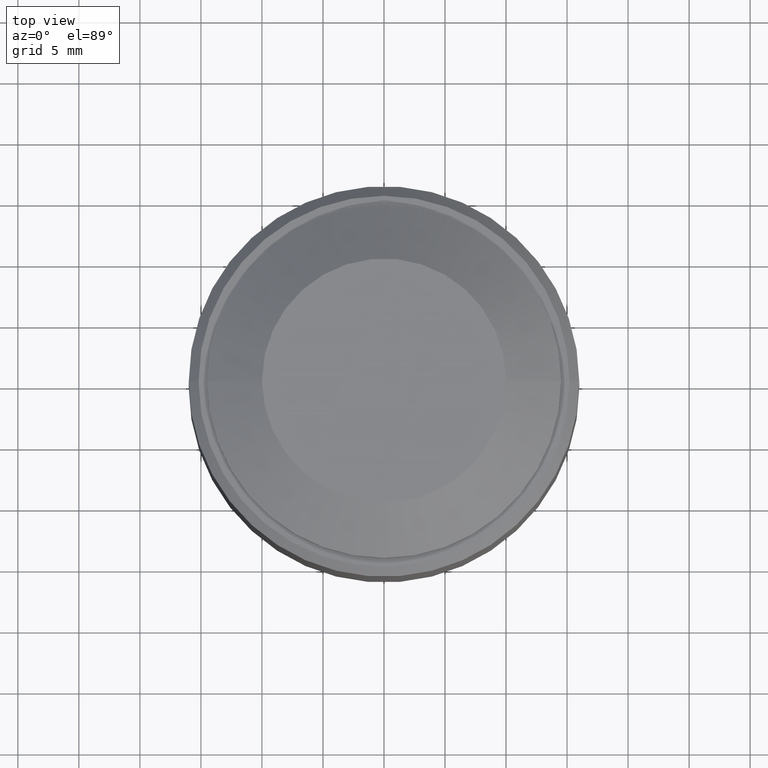
[diagram: clean part render]
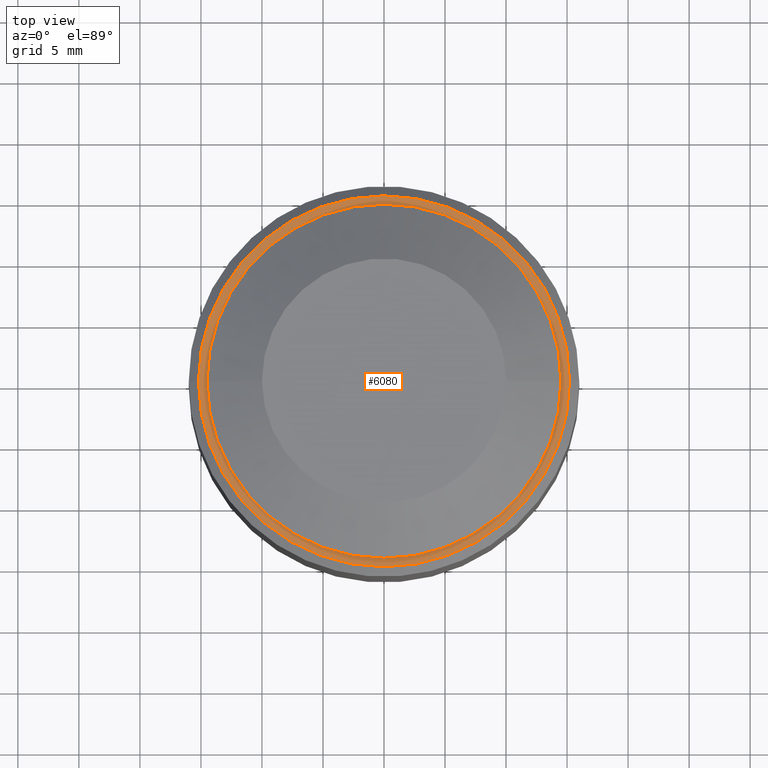
[diagram: same view with one face highlighted and labeled with its STEP entity id]
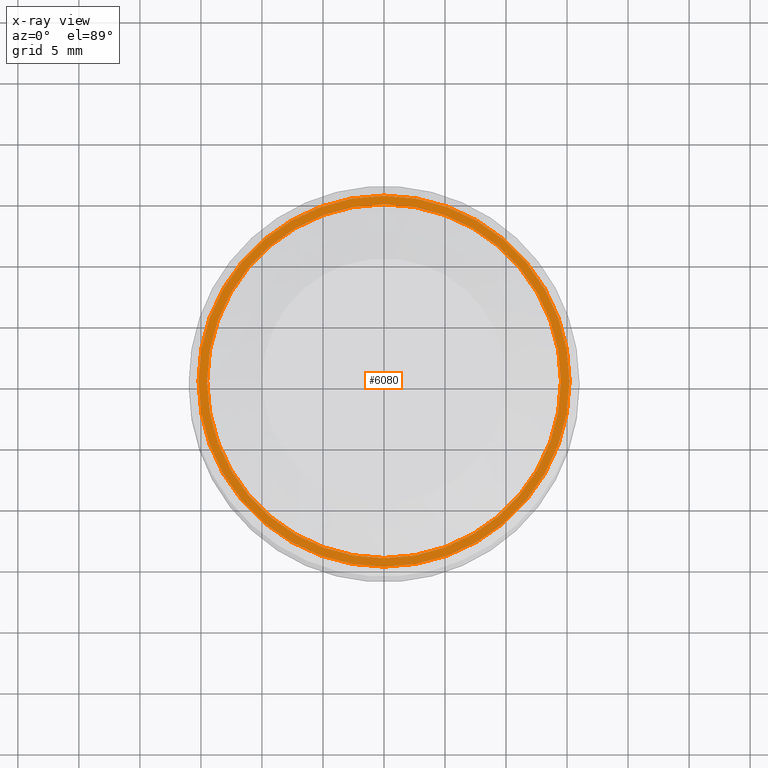
[diagram: x-ray of the same camera — body ghosted, the highlighted face saturated]
A machine part, top view. The second image highlights one B-rep face of the part: STEP entity #6080.
The next image is the same camera in x-ray: the body ghosted, the highlighted face saturated — about 0% of this face is hidden behind the body in this view.
In plain terms, the highlighted planar face has unit normal (0, 0, 1).
Its self-contained STEP definition (entity closure, byte-faithful):
#368 = ORIENTED_EDGE ( 'NONE', *, *, #14383, .T. ) ;
#1278 = ORIENTED_EDGE ( 'NONE', *, *, #4614, .F. ) ;
#2235 = DIRECTION ( 'NONE',  ( 1.000000000000000000, 0.000000000000000000, 0.000000000000000000 ) ) ;
#4146 = DIRECTION ( 'NONE',  ( 0.000000000000000000, 0.000000000000000000, 1.000000000000000000 ) ) ;
#4614 = EDGE_CURVE ( 'NONE', #25306, #20292, #20186, .T. ) ;
#6080 = ADVANCED_FACE ( 'NONE', ( #11035, #15303 ), #23709, .T. ) ;
#6860 = ORIENTED_EDGE ( 'NONE', *, *, #17981, .F. ) ;
#7209 = CARTESIAN_POINT ( 'NONE',  ( -15.19999999999999929, 0.000000000000000000, 35.39999999999999858 ) ) ;
#7505 = DIRECTION ( 'NONE',  ( 1.000000000000000000, 0.000000000000000000, 0.000000000000000000 ) ) ;
#8412 = CIRCLE ( 'NONE', #10184, 15.19999999999999929 ) ;
#9651 = CARTESIAN_POINT ( 'NONE',  ( 15.19999999999999929, 1.910449006669870914E-15, 35.39999999999999858 ) ) ;
#10184 = AXIS2_PLACEMENT_3D ( 'NONE', #21359, #16815, #2235 ) ;
#10200 = CARTESIAN_POINT ( 'NONE',  ( 0.000000000000000000, 0.000000000000000000, 35.39999999999999858 ) ) ;
#10477 = VERTEX_POINT ( 'NONE', #7209 ) ;
#10735 = DIRECTION ( 'NONE',  ( 0.000000000000000000, 0.000000000000000000, 1.000000000000000000 ) ) ;
#10941 = EDGE_LOOP ( 'NONE', ( #1278, #6860 ) ) ;
#11035 = FACE_BOUND ( 'NONE', #10941, .T. ) ;
#11190 = AXIS2_PLACEMENT_3D ( 'NONE', #10200, #10735, #16797 ) ;
#11319 = EDGE_CURVE ( 'NONE', #26114, #10477, #23072, .T. ) ;
#11367 = ORIENTED_EDGE ( 'NONE', *, *, #11319, .T. ) ;
#12705 = AXIS2_PLACEMENT_3D ( 'NONE', #24115, #22455, #13910 ) ;
#13910 = DIRECTION ( 'NONE',  ( 1.000000000000000000, 0.000000000000000000, 0.000000000000000000 ) ) ;
#14383 = EDGE_CURVE ( 'NONE', #10477, #26114, #8412, .T. ) ;
#15303 = FACE_OUTER_BOUND ( 'NONE', #15739, .T. ) ;
#15492 = CARTESIAN_POINT ( 'NONE',  ( 0.000000000000000000, 0.000000000000000000, 35.39999999999999858 ) ) ;
#15739 = EDGE_LOOP ( 'NONE', ( #368, #11367 ) ) ;
#16797 = DIRECTION ( 'NONE',  ( 1.000000000000000000, 0.000000000000000000, 0.000000000000000000 ) ) ;
#16815 = DIRECTION ( 'NONE',  ( 0.000000000000000000, 0.000000000000000000, 1.000000000000000000 ) ) ;
#17562 = AXIS2_PLACEMENT_3D ( 'NONE', #15492, #19480, #7505 ) ;
#17867 = AXIS2_PLACEMENT_3D ( 'NONE', #27149, #4146, #23148 ) ;
#17981 = EDGE_CURVE ( 'NONE', #20292, #25306, #20515, .T. ) ;
#19480 = DIRECTION ( 'NONE',  ( 0.000000000000000000, 0.000000000000000000, 1.000000000000000000 ) ) ;
#20186 = CIRCLE ( 'NONE', #17562, 14.50000000000000000 ) ;
#20292 = VERTEX_POINT ( 'NONE', #25931 ) ;
#20515 = CIRCLE ( 'NONE', #17867, 14.50000000000000000 ) ;
#21359 = CARTESIAN_POINT ( 'NONE',  ( 0.000000000000000000, 0.000000000000000000, 35.39999999999999858 ) ) ;
#22455 = DIRECTION ( 'NONE',  ( 0.000000000000000000, 0.000000000000000000, 1.000000000000000000 ) ) ;
#23072 = CIRCLE ( 'NONE', #11190, 15.19999999999999929 ) ;
#23148 = DIRECTION ( 'NONE',  ( 1.000000000000000000, 0.000000000000000000, 0.000000000000000000 ) ) ;
#23709 = PLANE ( 'NONE',  #12705 ) ;
#23966 = CARTESIAN_POINT ( 'NONE',  ( 14.50000000000000000, 0.000000000000000000, 35.39999999999999858 ) ) ;
#24115 = CARTESIAN_POINT ( 'NONE',  ( 0.000000000000000000, 0.000000000000000000, 35.39999999999999858 ) ) ;
#25306 = VERTEX_POINT ( 'NONE', #23966 ) ;
#25931 = CARTESIAN_POINT ( 'NONE',  ( -14.50000000000000000, 1.775737858763662015E-15, 35.39999999999999858 ) ) ;
#26114 = VERTEX_POINT ( 'NONE', #9651 ) ;
#27149 = CARTESIAN_POINT ( 'NONE',  ( 0.000000000000000000, 0.000000000000000000, 35.39999999999999858 ) ) ;